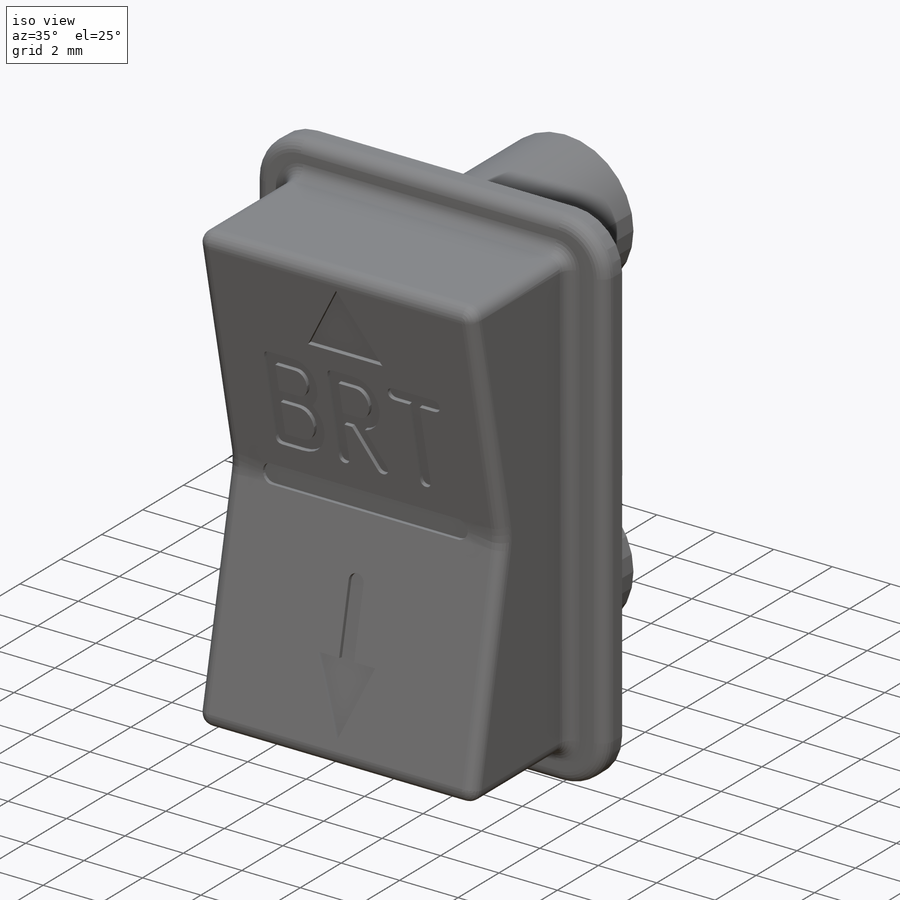
[diagram: iso view]
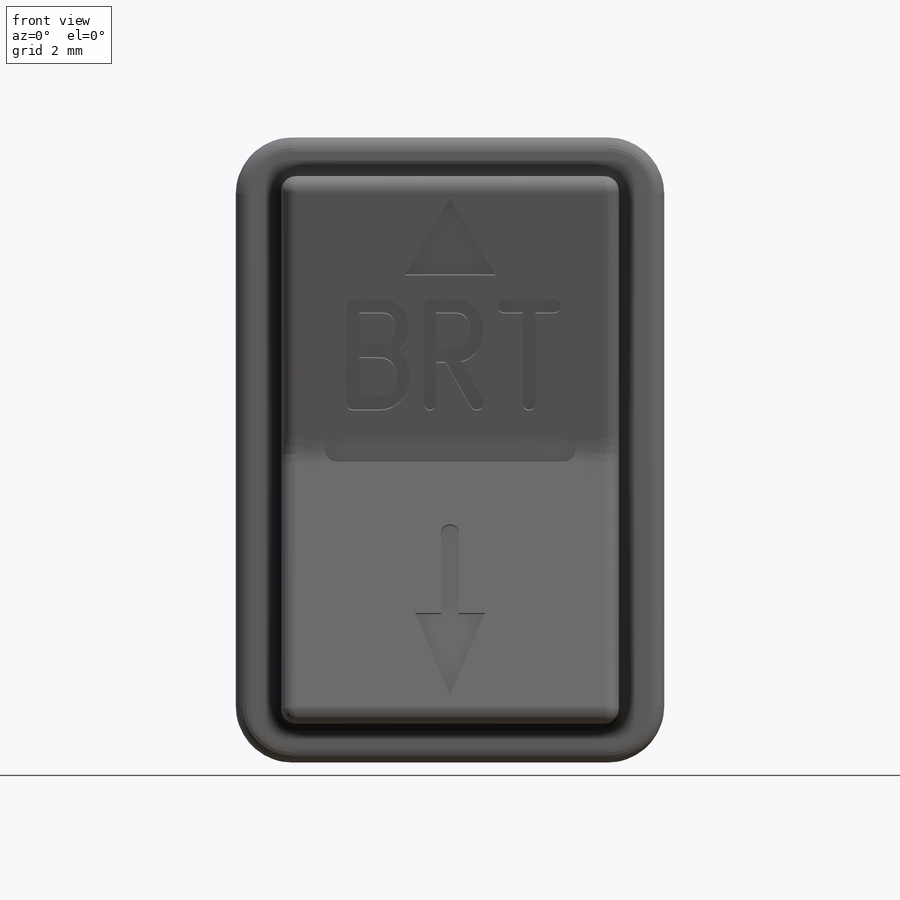
[diagram: front view]
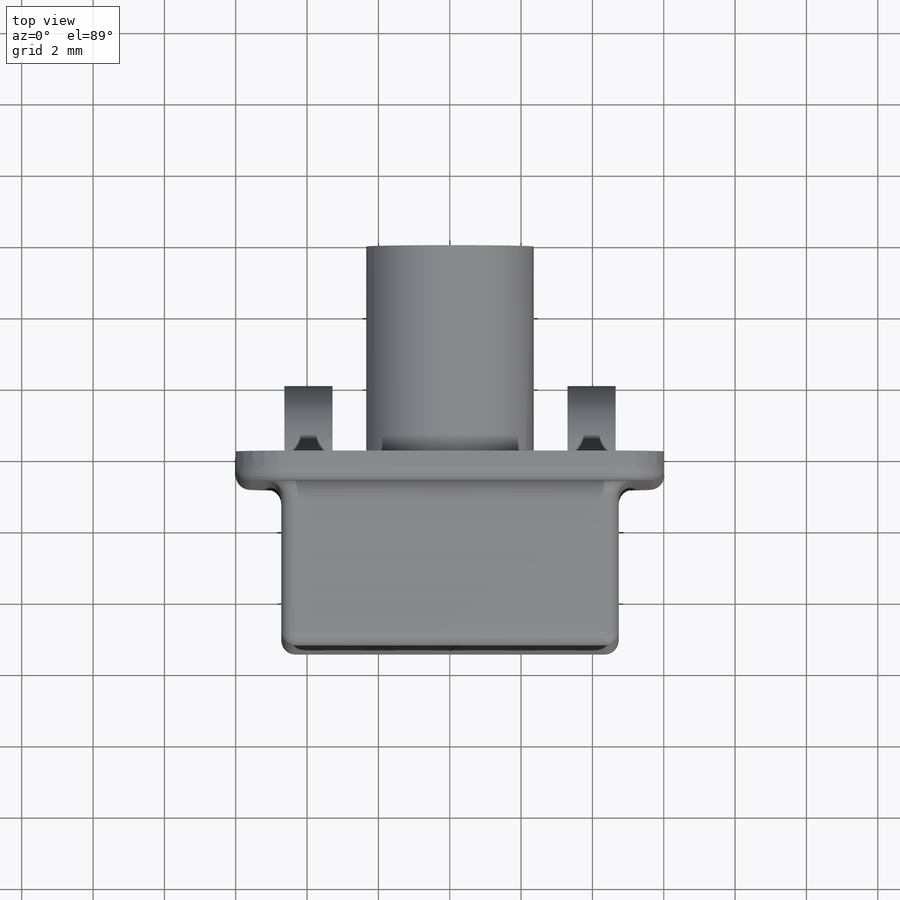
[diagram: top view]
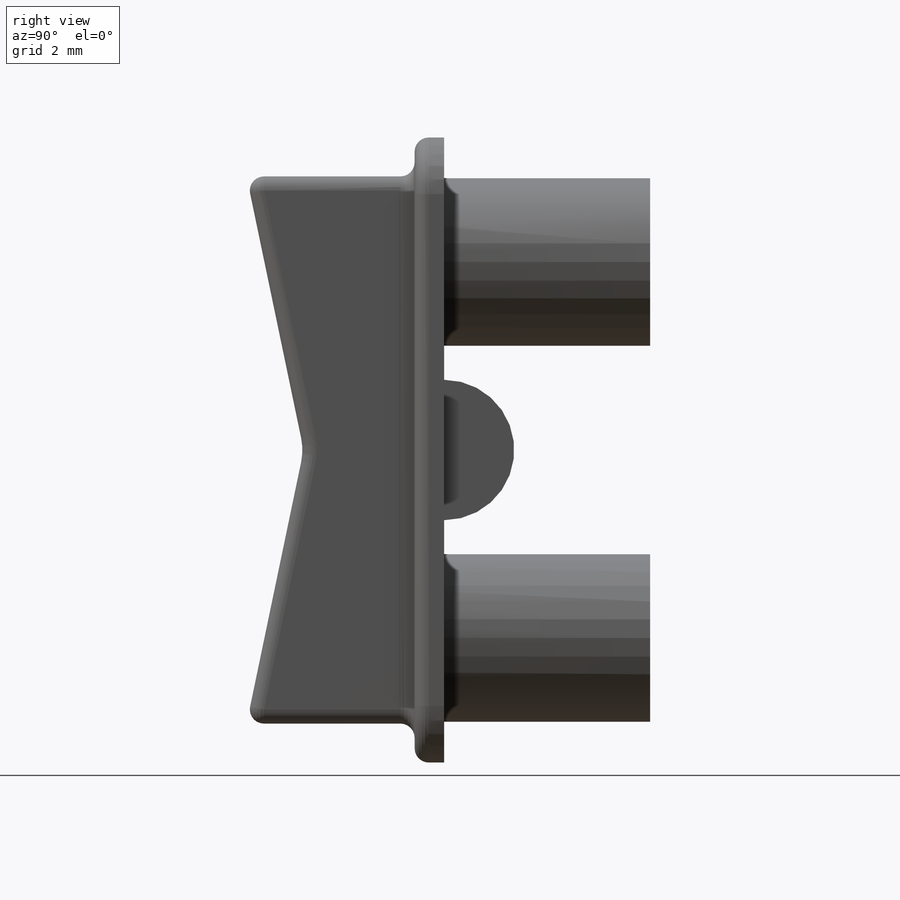
[diagram: right view]
SOLIDWORKS PART (.sldprt)
format: sldprt  version: not decoded by parser v0  size: 2,983,424 bytes
history: native  units: mm
features: sketch x13, extrude x5, cut_extrude x4, fillet x4, material x1, shell x1, plane x1 (+16 scaffold rows collapsed)
feature tree (45):
  scaffold x16  (default folders/planes/origin — collapsed)
  material  "Acrylic (Medium-high impact)"
  sketch  "Sketch1"  dims[D1=12.0142mm D2=17.526mm]
  extrude  "Extrude1"  Depth=0.8255mm
  sketch  "Sketch2"  dims[D1=9.4615mm D2=15.3416mm]
  extrude  "Extrude2"  Depth=5.5372mm
  sketch  "Sketch3"  dims[D1=3.937mm]
  cut_extrude  "Extrude3"  [1 undecoded]
  fillet  "Fillet1"  Radius=1.5875mm
  fillet  "Fillet2"  Radius=0.396875mm
  fillet  "Fillet3"  Radius=1.5875mm
  shell  "Shell1"  Thickness=1.4351mm
  fillet  "Fillet4"  Radius=0.396875mm
  sketch  "Sketch4"  dims[D3=4.699mm D4=2.3622mm D1=7.62mm D2=7.62mm]
  extrude  "Extrude4"  Depth=5.7785mm
  sketch  "Sketch5"  dims[D1=3.937mm]
  extrude  "Extrude5"  Depth=1.3462mm
  sketch  "Sketch6"
  extrude  "Extrude6"  Depth=1.3462mm
  plane  "Plane1"
  sketch  "Sketch10"  dims[D1=6.35mm]
  cut_extrude  "Center Line Engraving"  Depth=0.13462mm
  sketch  "Sketch11"  dims[c1.D1=1.9558mm c1.D2=1.9558mm c2.D2=60.0deg c2.D3=~0.794755mm c3.D3=60.0deg c3.D4=2.54mm c3.D2=~1.693772mm c4.D2=45.0deg c4.D5=0.254mm c4.D6=0.254mm]
  cut_extrude  "Down Arrow Engaving"  Depth=0.13462mm
  sketch  "Sketch7"  dims[c1.D1=2.54mm c1.D2=1.27mm c2.D2=135.0deg c3.D2=2.54mm c4.D2=45.0deg c4.D3=~1.796051mm c5.D2=~1.977721mm c6.D2=60.0deg c6.D3=2.54mm]
  sketch  "Sketch12"  dims[c1.D1=2.54mm c1.D2=60.0deg c1.D3=~2.345887mm c2.D1=2.54mm c3.D1=60.0deg c3.D2=~2.53929mm c4.D2=60.0deg c4.D3=~3.08467mm c5.D3=90.0deg c5.D4=~2.742762mm]
  cut_extrude  "Up Arrow"  Depth=0.13462mm
  sketch  "Sketch13"  dims[D1=0.127mm]
  sketch  "Sketch14"  dims[D1=0.127mm]
  sketch  "Sketch15"  dims[D1=0.127mm]
decode coverage: 25 of 27 modeling features carry decoded parameters
note: ~ marks probable driven/reference dimensions
note: 1 parameter value undecoded
note: suppression state not decoded; provenance and decode notes live in map.json
